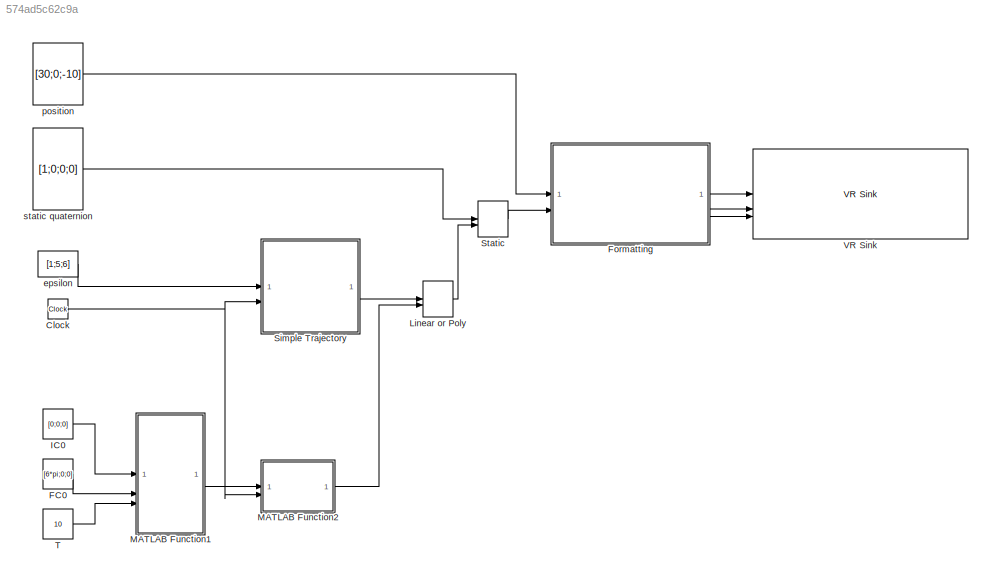
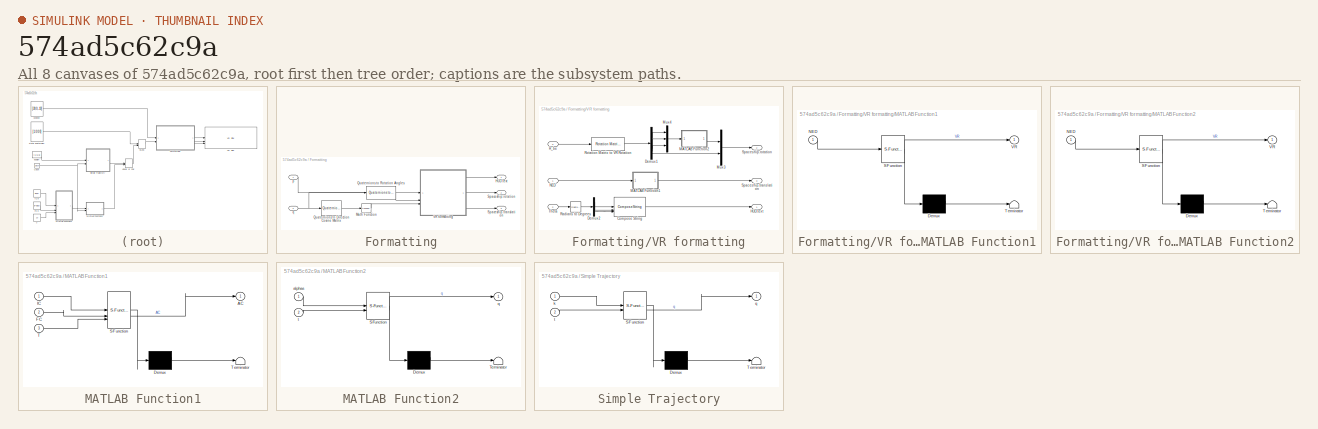
[diagram: thumbnail index - all 8 canvases of the model, root first then tree order]
MODEL slx_574ad5c62c9a
KIND model
CONFIG AbsTol = auto
CONFIG EnableMultiTasking = on
CONFIG FixedStep = auto
CONFIG MaxStep = auto
CONFIG MinStep = auto
CONFIG RelTol = 1e-3
CONFIG SampleTimeConstraint = Unconstrained
CONFIG SolverName = ode45
CONFIG StartTime = 0.0
CONFIG StopTime = 10
BLOCK [Clock] Clock
BLOCK [Constant] FC0
  Value = [6*pi;0;0]
BLOCK [SubSystem] Formatting
BLOCK [Outport] Formatting/HUD.text
BLOCK [Math] Formatting/Math Function
  Operator = transpose
BLOCK [Reference] Formatting/Quaternions to Direction Cosine Matrix  REF=sharedtransform/Quaternions to 
Direction Cosine Matrix
  LibrarySourceBlock = aerolibtransform2/Quaternions to \nDirection Cosine Matrix
  SourceBlock = sharedtransform/Quaternions to \nDirection Cosine Matrix
  SourceType = Quaternion2DCM
BLOCK [Reference] Formatting/Quaternions to Rotation Angles  REF=sharedtransform/Quaternions to Rotation Angles
  AttributesFormatString = Rotation Order: %<rotationOrder>
  LibrarySourceBlock = aerolibtransform2/Quaternions to Rotation Angles
  SourceBlock = sharedtransform/Quaternions to Rotation Angles
  SourceType = Quat2Ang
BLOCK [Outport] Formatting/Spaceship.rotation
  Port = 2
BLOCK [Outport] Formatting/Spaceship.translation
  Port = 3
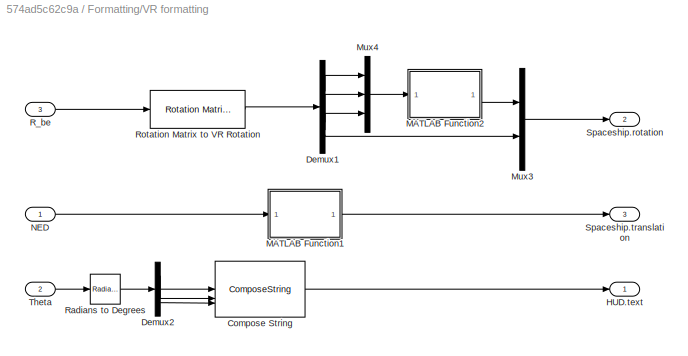
BLOCK [SubSystem] Formatting/VR formatting
BLOCK [ComposeString] Formatting/VR formatting/Compose String
  Format = 'Roll    : %7.2f deg\nPitch   : %7.2f deg\nYaw     : %7.2f deg'
BLOCK [Demux] Formatting/VR formatting/Demux1
BLOCK [Demux] Formatting/VR formatting/Demux2
  Outputs = 3
BLOCK [Outport] Formatting/VR formatting/HUD.text
BLOCK [SubSystem] Formatting/VR formatting/MATLAB Function1
  ErrorFcn = Stateflow.Translate.translate
  PermitHierarchicalResolution = ExplicitOnly
  SFBlockType = MATLAB Function
  TreatAsAtomicUnit = on
BLOCK [Demux] Formatting/VR formatting/MATLAB Function1/ Demux 
  Outputs = 1
BLOCK [S-Function] Formatting/VR formatting/MATLAB Function1/ SFunction 
  EnableBusSupport = on
  FunctionName = sf_sfun
  PortCounts = [1 2]
  SFcnIsStateOwnerBlock = off
  SFunctionDeploymentMode = off
  Tag = Stateflow S-Function 5
BLOCK [Terminator] Formatting/VR formatting/MATLAB Function1/ Terminator 
BLOCK [Inport] Formatting/VR formatting/MATLAB Function1/NED
BLOCK [Outport] Formatting/VR formatting/MATLAB Function1/VR
BLOCK [SubSystem] Formatting/VR formatting/MATLAB Function2
  ErrorFcn = Stateflow.Translate.translate
  PermitHierarchicalResolution = ExplicitOnly
  SFBlockType = MATLAB Function
  TreatAsAtomicUnit = on
BLOCK [Demux] Formatting/VR formatting/MATLAB Function2/ Demux 
  Outputs = 1
BLOCK [S-Function] Formatting/VR formatting/MATLAB Function2/ SFunction 
  EnableBusSupport = on
  FunctionName = sf_sfun
  PortCounts = [1 2]
  SFcnIsStateOwnerBlock = off
  SFunctionDeploymentMode = off
  Tag = Stateflow S-Function 6
BLOCK [Terminator] Formatting/VR formatting/MATLAB Function2/ Terminator 
BLOCK [Inport] Formatting/VR formatting/MATLAB Function2/NED
BLOCK [Outport] Formatting/VR formatting/MATLAB Function2/VR
BLOCK [Mux] Formatting/VR formatting/Mux3
  DisplayOption = bar
  Inputs = 2
BLOCK [Mux] Formatting/VR formatting/Mux4
  DisplayOption = bar
  Inputs = 3
BLOCK [Inport] Formatting/VR formatting/NED
BLOCK [Inport] Formatting/VR formatting/R_be
  Port = 3
BLOCK [Reference] Formatting/VR formatting/Radians to Degrees  REF=simulink_extras/Transformations/Radians
to Degrees
  SourceBlock = simulink_extras/Transformations/Radians\nto Degrees
  SourceType = RadiansToDegrees
BLOCK [Reference] Formatting/VR formatting/Rotation Matrix to VR Rotation  REF=vrlib/Utilities/Rotation Matrix
to VR Rotation
  SourceBlock = vrlib/Utilities/Rotation Matrix\nto VR Rotation
  SourceType = Rotation Matrix to VR Rotation
BLOCK [Outport] Formatting/VR formatting/Spaceship.rotation
  Port = 2
BLOCK [Outport] Formatting/VR formatting/Spaceship.translation
  Port = 3
BLOCK [Inport] Formatting/VR formatting/Theta
  Port = 2
BLOCK [Inport] Formatting/p
BLOCK [Inport] Formatting/q
  Port = 2
BLOCK [Constant] IC0
  Value = [0;0;0]
BLOCK [ManualSwitch] Linear or Poly
  CurrentSetting = 0
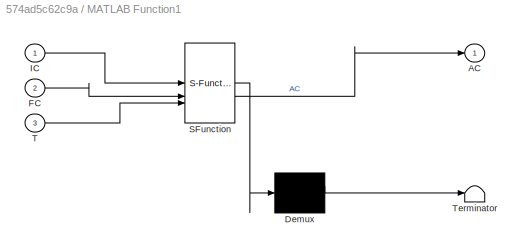
BLOCK [SubSystem] MATLAB Function1
  ErrorFcn = Stateflow.Translate.translate
  PermitHierarchicalResolution = ExplicitOnly
  SFBlockType = MATLAB Function
  TreatAsAtomicUnit = on
BLOCK [Demux] MATLAB Function1/ Demux 
  Outputs = 1
BLOCK [S-Function] MATLAB Function1/ SFunction 
  EnableBusSupport = on
  FunctionName = sf_sfun
  PortCounts = [3 2]
  SFcnIsStateOwnerBlock = off
  SFunctionDeploymentMode = off
  Tag = Stateflow S-Function 3
BLOCK [Terminator] MATLAB Function1/ Terminator 
BLOCK [Outport] MATLAB Function1/AC
BLOCK [Inport] MATLAB Function1/FC
  Port = 2
BLOCK [Inport] MATLAB Function1/IC
BLOCK [Inport] MATLAB Function1/T
  Port = 3
BLOCK [SubSystem] MATLAB Function2
  ErrorFcn = Stateflow.Translate.translate
  PermitHierarchicalResolution = ExplicitOnly
  SFBlockType = MATLAB Function
  TreatAsAtomicUnit = on
BLOCK [Demux] MATLAB Function2/ Demux 
  Outputs = 1
BLOCK [S-Function] MATLAB Function2/ SFunction 
  EnableBusSupport = on
  FunctionName = sf_sfun
  PortCounts = [2 2]
  SFcnIsStateOwnerBlock = off
  SFunctionDeploymentMode = off
  Tag = Stateflow S-Function 4
BLOCK [Terminator] MATLAB Function2/ Terminator 
BLOCK [Inport] MATLAB Function2/alphas
BLOCK [Outport] MATLAB Function2/q
BLOCK [Inport] MATLAB Function2/t
  Port = 2
BLOCK [SubSystem] Simple Trajectory
  ErrorFcn = Stateflow.Translate.translate
  PermitHierarchicalResolution = ExplicitOnly
  SFBlockType = MATLAB Function
  TreatAsAtomicUnit = on
BLOCK [Demux] Simple Trajectory/ Demux 
  Outputs = 1
BLOCK [S-Function] Simple Trajectory/ SFunction 
  EnableBusSupport = on
  FunctionName = sf_sfun
  PortCounts = [2 2]
  SFcnIsStateOwnerBlock = off
  SFunctionDeploymentMode = off
  Tag = Stateflow S-Function 2
BLOCK [Terminator] Simple Trajectory/ Terminator 
BLOCK [Inport] Simple Trajectory/k
BLOCK [Outport] Simple Trajectory/q
BLOCK [Inport] Simple Trajectory/t
  Port = 2
BLOCK [ManualSwitch] Static
  CurrentSetting = 0
BLOCK [Constant] T
  Value = 10
BLOCK [Reference] VR Sink  REF=vrlib/VR Sink
  InstantiateOnLoad = on
  SourceBlock = vrlib/VR Sink
  SourceType = Virtual Reality Sink
BLOCK [Constant] epsilon
  Value = [1;5;6]
BLOCK [Constant] position
  Value = [30;0;-10]
  VectorParams1D = off
BLOCK [Constant] static quaternion
  Value = [1;0;0;0]
  VectorParams1D = off
NET Clock:1 -> MATLAB Function2:2, Simple Trajectory:2
LINE FC0:1 -> MATLAB Function1:2
LINE Formatting/Math Function:1 -> Formatting/VR formatting:3
LINE Formatting/Quaternions to Direction Cosine Matrix:1 -> Formatting/Math Function:1
LINE Formatting/Quaternions to Rotation Angles:1 -> Formatting/VR formatting:2
LINE Formatting/VR formatting/Compose String:1 -> Formatting/VR formatting/HUD.text:1
LINE Formatting/VR formatting/Demux1:1 -> Formatting/VR formatting/Mux4:1
LINE Formatting/VR formatting/Demux1:2 -> Formatting/VR formatting/Mux4:2
LINE Formatting/VR formatting/Demux1:3 -> Formatting/VR formatting/Mux4:3
LINE Formatting/VR formatting/Demux1:4 -> Formatting/VR formatting/Mux3:2
LINE Formatting/VR formatting/Demux2:1 -> Formatting/VR formatting/Compose String:1
LINE Formatting/VR formatting/Demux2:2 -> Formatting/VR formatting/Compose String:2
LINE Formatting/VR formatting/Demux2:3 -> Formatting/VR formatting/Compose String:3
LINE Formatting/VR formatting/MATLAB Function1:1 -> Formatting/VR formatting/Spaceship.translation:1
LINE Formatting/VR formatting/MATLAB Function2:1 -> Formatting/VR formatting/Mux3:1
LINE Formatting/VR formatting/Mux3:1 -> Formatting/VR formatting/Spaceship.rotation:1
LINE Formatting/VR formatting/Mux4:1 -> Formatting/VR formatting/MATLAB Function2:1
LINE Formatting/VR formatting/NED:1 -> Formatting/VR formatting/MATLAB Function1:1
LINE Formatting/VR formatting/R_be:1 -> Formatting/VR formatting/Rotation Matrix to VR Rotation:1
LINE Formatting/VR formatting/Radians to Degrees:1 -> Formatting/VR formatting/Demux2:1
LINE Formatting/VR formatting/Rotation Matrix to VR Rotation:1 -> Formatting/VR formatting/Demux1:1
LINE Formatting/VR formatting/Theta:1 -> Formatting/VR formatting/Radians to Degrees:1
LINE Formatting/VR formatting:1 -> Formatting/HUD.text:1
LINE Formatting/VR formatting:2 -> Formatting/Spaceship.rotation:1
LINE Formatting/VR formatting:3 -> Formatting/Spaceship.translation:1
LINE Formatting/p:1 -> Formatting/VR formatting:1
NET Formatting/q:1 -> Formatting/Quaternions to Direction Cosine Matrix:1, Formatting/Quaternions to Rotation Angles:1
LINE Formatting:1 -> VR Sink:1
LINE Formatting:2 -> VR Sink:2
LINE Formatting:3 -> VR Sink:3
LINE IC0:1 -> MATLAB Function1:1
LINE Linear or Poly:1 -> Static:2
LINE MATLAB Function1:1 -> MATLAB Function2:1
LINE MATLAB Function2:1 -> Linear or Poly:2
LINE Simple Trajectory:1 -> Linear or Poly:1
LINE Static:1 -> Formatting:2
LINE T:1 -> MATLAB Function1:3
LINE epsilon:1 -> Simple Trajectory:1
LINE position:1 -> Formatting:1
LINE static quaternion:1 -> Static:1
note: NET lines group one-source signal fan-out (src -> all destinations, sorted); 1:1 wires keep LINE
CHART Simple Trajectory states=1 transitions=1
  STATE_LABEL 'eML_blk_kernel()'
  STATE_LABEL 'SCRIPT:\nfunction q = trajectory(k, t)\nk = k/norm(k); % Axis of rotation\n\nrotations = 3;\ntotal_time = 10;\n\nbeta = t*rotations*(2*pi)/total_time; % Rotation\n\neta = cos(beta/2)\nepsilon = k*sin(beta/2)\n\nq = [eta;\n     epsilon];'
CHART MATLAB Function1 states=1 transitions=1
  STATE_LABEL 'eML_blk_kernel()'
  STATE_LABEL 'SCRIPT:\nfunction AC = poly5traj(IC,FC,T)\n\n%POLY5TRAJ Computes coefficients of polynomial for trajectory planning.\n%   AC = POLY5TRAJ(IC,FC,T) finds the vector AC of the coefficients of a \n%   polynomial h(t) of degree 5 (h(t)=AC(1)+AC(2)*t+AC(3)*t^2+...+AC(6)*T^5), \n%   with initial conditions being specified in the vector IC=[h(0);h^(1)(0);h^(2)(0)], \n%   and final conditions at time t=T specifie...<+496ch>'
CHART MATLAB Function2 states=1 transitions=1
  STATE_LABEL 'eML_blk_kernel()'
  STATE_LABEL 'SCRIPT:\nfunction q = fcn(alphas, t)\n\nbeta = alphas(1) + alphas(2)*t + alphas(3)*t^2 + alphas(4)*t^3 + alphas(5)*t^4 + alphas(6)*t^5;\n\nk = [\n        1;\n        0;\n        0\n            ];\n\nq = [\n        cos(beta/2);\n        k*sin(beta/2)\n            ];'
CHART Formatting/VR formatting/MATLAB Function1 states=1 transitions=1
  STATE_LABEL 'eML_blk_kernel()'
  STATE_LABEL 'SCRIPT:\nfunction VR = NED2VR(NED)\n\nx = NED(1); % north\ny = NED(2); % east \nz = NED(3); % down\n\nVR = [ -y ; -z ; x ];\n'
CHART Formatting/VR formatting/MATLAB Function2 states=1 transitions=1
  STATE_LABEL 'eML_blk_kernel()'
  STATE_LABEL 'SCRIPT:\nfunction VR = NED2VR(NED)\n\nx = NED(1); % north\ny = NED(2); % east \nz = NED(3); % down\n\nVR = [ -y ; -z ; x ];\n'
CHART  states=0 transitions=0
CHART  states=0 transitions=0
CHART  states=0 transitions=0
CHART  states=0 transitions=0
CHART  states=0 transitions=0
